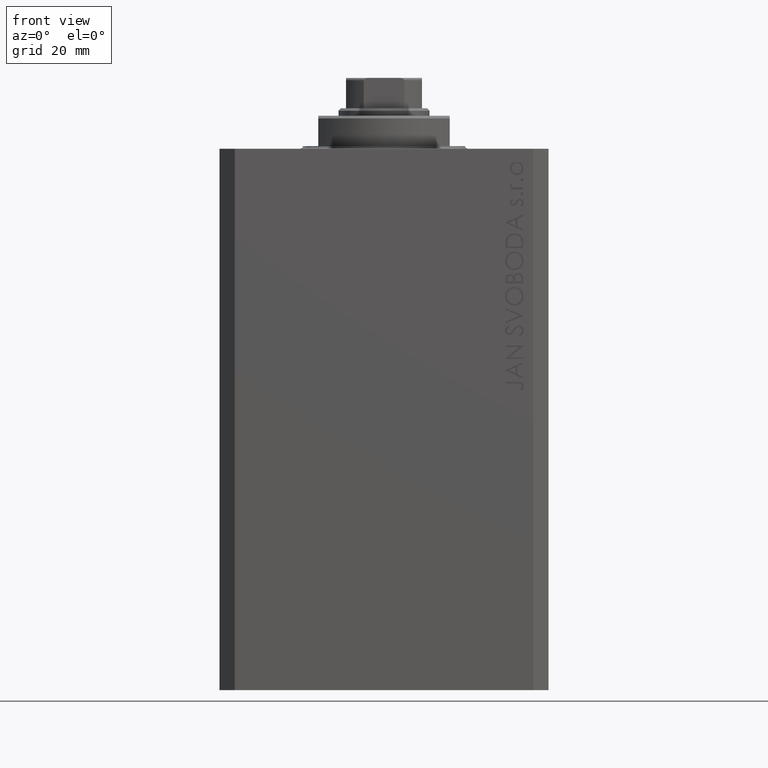
[diagram: clean part render]
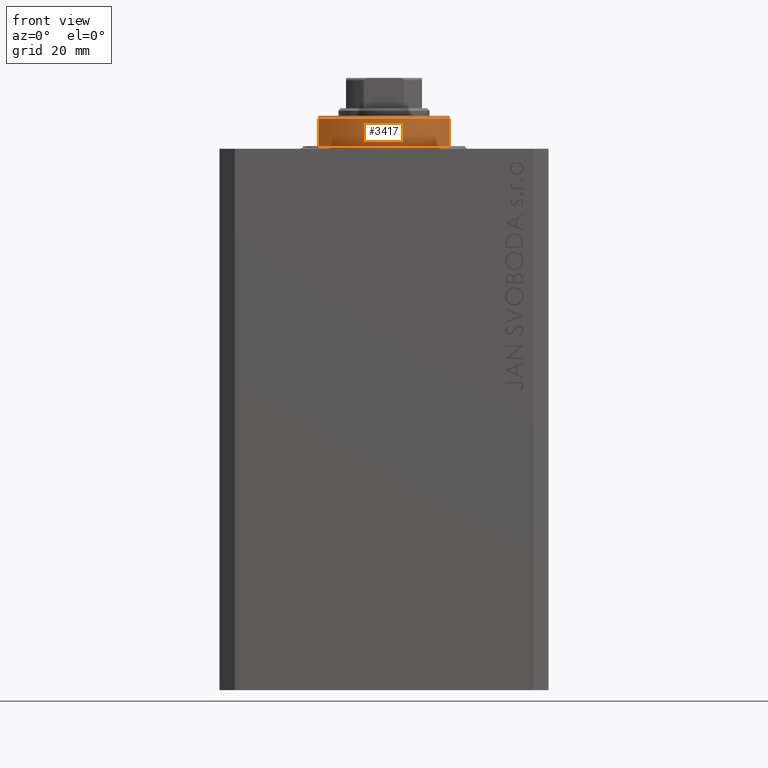
[diagram: same view with one face highlighted and labeled with its STEP entity id]
A machine part, front view. The second image highlights one B-rep face of the part: STEP entity #3417.
In plain terms, the highlighted cylindrical surface (partial cylindrical patch) has radius 16 mm, axis along (0, 0, -1).
Its self-contained STEP definition (entity closure, byte-faithful):
#591 = DIRECTION ( 'NONE',  ( 0.000000000000000000, 0.000000000000000000, -1.000000000000000000 ) ) ;
#1235 = DIRECTION ( 'NONE',  ( -0.000000000000000000, -0.000000000000000000, -1.000000000000000000 ) ) ;
#1394 = AXIS2_PLACEMENT_3D ( 'NONE', #10332, #41631, #27682 ) ;
#3417 = ADVANCED_FACE ( 'NONE', ( #37807 ), #17105, .T. ) ;
#4387 = VECTOR ( 'NONE', #591, 1000.000000000000000 ) ;
#4935 = CARTESIAN_POINT ( 'NONE',  ( -13.00000000000000000, -9.327379053088815652, -0.4999999999999995559 ) ) ;
#6673 = VECTOR ( 'NONE', #38612, 1000.000000000000000 ) ;
#6851 = VERTEX_POINT ( 'NONE', #21406 ) ;
#7774 = ORIENTED_EDGE ( 'NONE', *, *, #17877, .T. ) ;
#8380 = AXIS2_PLACEMENT_3D ( 'NONE', #18801, #1235, #26254 ) ;
#8898 = CARTESIAN_POINT ( 'NONE',  ( 13.00000000000000000, -9.327379053088815652, -6.000000000000023981 ) ) ;
#9468 = EDGE_CURVE ( 'NONE', #10390, #29682, #36076, .T. ) ;
#10332 = CARTESIAN_POINT ( 'NONE',  ( 0.000000000000000000, 0.000000000000000000, -6.500000000000000000 ) ) ;
#10390 = VERTEX_POINT ( 'NONE', #11674 ) ;
#11197 = CARTESIAN_POINT ( 'NONE',  ( 13.00000000000000000, -9.327379053088813876, -6.500000000000000000 ) ) ;
#11431 = VERTEX_POINT ( 'NONE', #4935 ) ;
#11674 = CARTESIAN_POINT ( 'NONE',  ( -13.00000000000000000, -9.327379053088815652, -6.000000000000023981 ) ) ;
#12211 = ORIENTED_EDGE ( 'NONE', *, *, #9468, .T. ) ;
#12676 = CARTESIAN_POINT ( 'NONE',  ( 0.000000000000000000, 0.000000000000000000, -6.000000000000023981 ) ) ;
#12894 = DIRECTION ( 'NONE',  ( 0.000000000000000000, 0.000000000000000000, 1.000000000000000000 ) ) ;
#17105 = CYLINDRICAL_SURFACE ( 'NONE', #1394, 16.00000000000000000 ) ;
#17877 = EDGE_CURVE ( 'NONE', #11431, #10390, #18108, .T. ) ;
#18108 = LINE ( 'NONE', #28714, #6673 ) ;
#18801 = CARTESIAN_POINT ( 'NONE',  ( 0.000000000000000000, 0.000000000000000000, -0.4999999999999995559 ) ) ;
#21406 = CARTESIAN_POINT ( 'NONE',  ( 13.00000000000000000, -9.327379053088815652, -0.4999999999999995559 ) ) ;
#24842 = ORIENTED_EDGE ( 'NONE', *, *, #29028, .T. ) ;
#24953 = CIRCLE ( 'NONE', #8380, 16.00000000000000000 ) ;
#26254 = DIRECTION ( 'NONE',  ( 1.000000000000000000, 0.000000000000000000, 0.000000000000000000 ) ) ;
#26642 = DIRECTION ( 'NONE',  ( -1.000000000000000000, 0.000000000000000000, 0.000000000000000000 ) ) ;
#27682 = DIRECTION ( 'NONE',  ( 1.000000000000000000, 0.000000000000000000, 0.000000000000000000 ) ) ;
#28714 = CARTESIAN_POINT ( 'NONE',  ( -13.00000000000000000, -9.327379053088813876, -6.500000000000000000 ) ) ;
#29028 = EDGE_CURVE ( 'NONE', #6851, #11431, #24953, .T. ) ;
#29682 = VERTEX_POINT ( 'NONE', #8898 ) ;
#30421 = EDGE_LOOP ( 'NONE', ( #42810, #24842, #7774, #12211 ) ) ;
#35746 = LINE ( 'NONE', #11197, #4387 ) ;
#36076 = CIRCLE ( 'NONE', #41085, 16.00000000000000000 ) ;
#36969 = EDGE_CURVE ( 'NONE', #6851, #29682, #35746, .T. ) ;
#37807 = FACE_OUTER_BOUND ( 'NONE', #30421, .T. ) ;
#38612 = DIRECTION ( 'NONE',  ( 0.000000000000000000, 0.000000000000000000, -1.000000000000000000 ) ) ;
#41085 = AXIS2_PLACEMENT_3D ( 'NONE', #12676, #12894, #26642 ) ;
#41631 = DIRECTION ( 'NONE',  ( -0.000000000000000000, -0.000000000000000000, 1.000000000000000000 ) ) ;
#42810 = ORIENTED_EDGE ( 'NONE', *, *, #36969, .F. ) ;